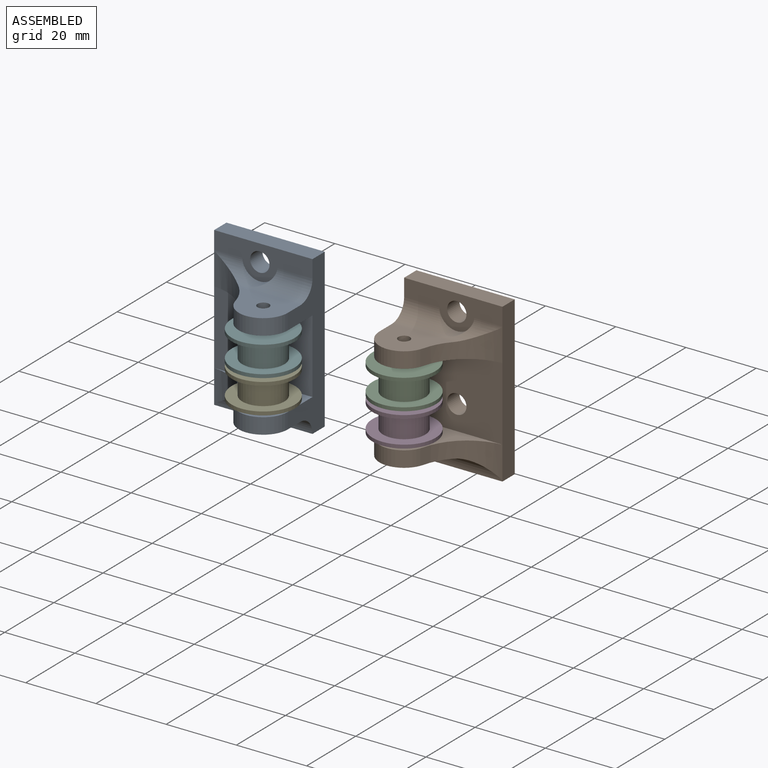
[diagram: assembled view]
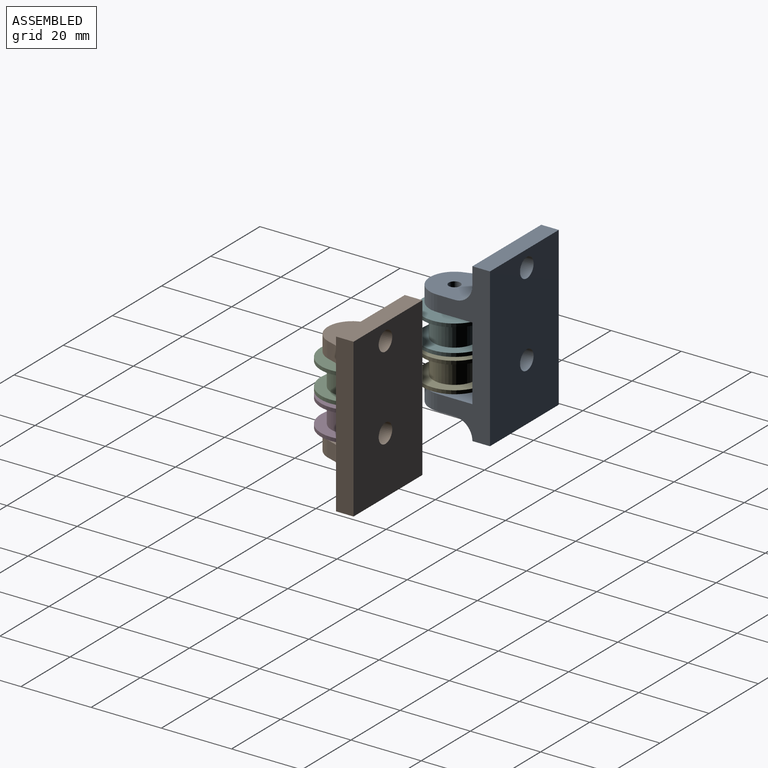
[diagram: assembled view, second angle]
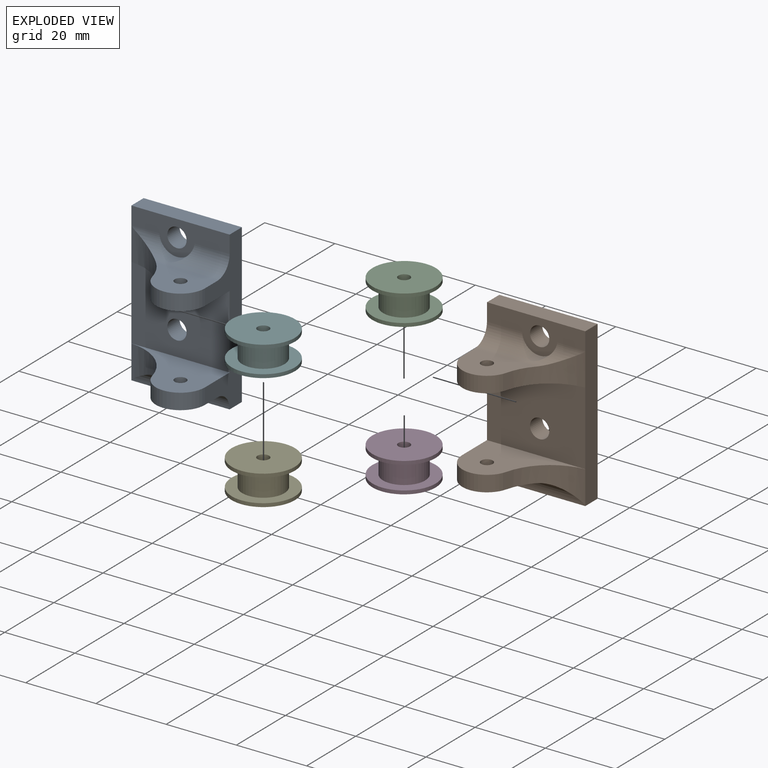
[diagram: exploded view]
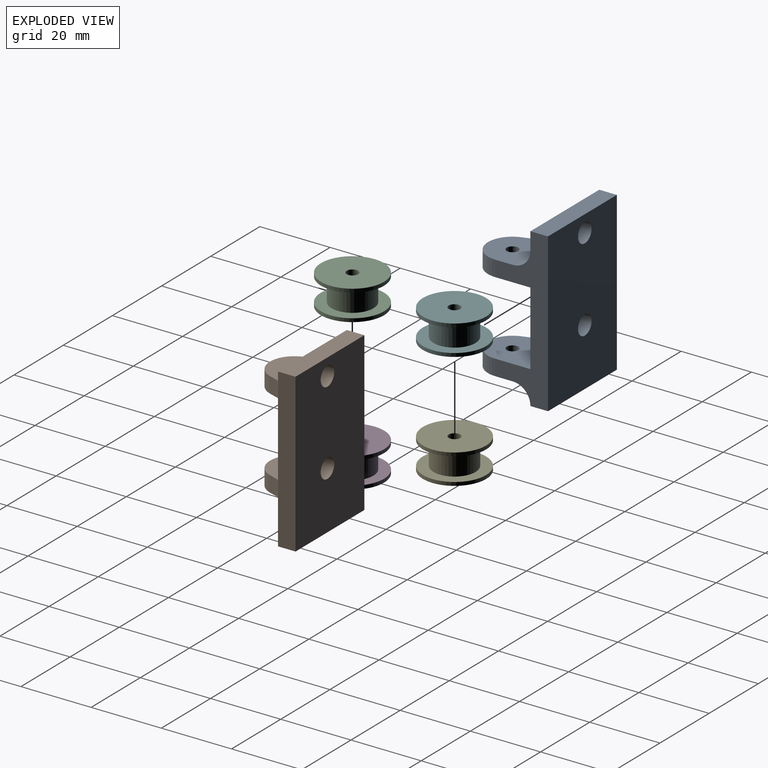
[diagram: exploded view, second angle]
ASSEMBLY  parts=6 mates=8
PART A: 22 faces, bbox 28x22x45 mm
  f0: plane 45x28mm, normal (0,1,0), area 1212.5mm2, adj f1,f7,f8,f18,f19,f21
  f1: plane 45x5mm, normal (-1,0,0), area 225mm2, adj f0,f3,f6,f8,f16,f17,f21
  f2: cylinder r=5mm len=28mm, axis (-1,0,0), area 132.9mm2, adj f3,f7,f10,f17,f20
  f3: plane 28x9.75mm, normal (0,-1,0), area 153mm2, adj f1,f2,f7,f8,f18,f20
  f4: cylinder r=7mm len=13.78mm, axis (0,0,1), area 91mm2, adj f7,f11,f12,f16
  f5: cylinder r=7mm len=13.78mm, axis (0,0,1), area 91mm2, adj f7,f9,f10,f17
  f6: plane 28x21mm, normal (0,-1,0), area 564.2mm2, adj f1,f7,f9,f11,f19
  f7: plane 45x15mm, normal (1,0,0), area 325.7mm2, adj f0,f2,f3,f4,f5,f6,f8,f9
  f8: plane 28x5mm, normal (0,0,1), area 140mm2, adj f0,f1,f3,f7
  f9: plane 28x17mm, normal (0,0,-1), area 251.9mm2, adj f5,f6,f7,f14,f17
  f10: plane 17.46x12mm, normal (0,0,1), area 147mm2, adj f2,f5,f7,f14,f17
  f11: plane 28x17mm, normal (0,0,1), area 251.9mm2, adj f4,f6,f7,f13,f16
  f12: plane 17.46x12mm, normal (0,0,-1), area 147mm2, adj f4,f7,f13,f15,f16
  f13: cylinder r=1.65mm len=4.5mm, axis (0,0,1), area 46.7mm2, adj f11,f12
  f14: cylinder r=1.65mm len=4.5mm, axis (0,0,1), area 46.7mm2, adj f9,f10
  f15: cylinder r=5mm len=28mm, axis (1,0,0), area 176.9mm2, adj f7,f12,f16,f21
  f16: cylinder r=15.69mm len=14.22mm, axis (0,0,1), area 109.4mm2, adj f1,f4,f11,f12,f15
  f17: cylinder r=15.69mm len=14.22mm, axis (0,0,-1), area 109.4mm2, adj f1,f2,f5,f9,f10
  f18: cylinder r=2.75mm len=5.5mm, axis (0,-1,0), area 86.4mm2, adj f0,f3
  f19: cylinder r=2.75mm len=5.5mm, axis (0,-1,0), area 86.4mm2, adj f0,f6
  f20: cylinder r=5mm len=9.99mm, axis (0,1,0), area 22.8mm2, adj f2,f3
  f21: plane 28x5mm, normal (0,0,-1), area 140mm2, adj f0,f1,f7,f15
PART B: 22 faces, bbox 28x22x45 mm
  f0: plane 45x28mm, normal (0,1,0), area 1212.5mm2, adj f1,f7,f8,f18,f19,f21
  f1: plane 45x5mm, normal (1,0,0), area 225mm2, adj f0,f3,f6,f8,f16,f17,f21
  f2: cylinder r=5mm len=28mm, axis (1,0,0), area 132.9mm2, adj f3,f7,f10,f17,f20
  f3: plane 28x9.75mm, normal (0,-1,0), area 153mm2, adj f1,f2,f7,f8,f18,f20
  f4: cylinder r=7mm len=13.78mm, axis (0,0,1), area 91mm2, adj f7,f11,f12,f16
  f5: cylinder r=7mm len=13.78mm, axis (0,0,1), area 91mm2, adj f7,f9,f10,f17
  f6: plane 28x21mm, normal (0,-1,0), area 564.2mm2, adj f1,f7,f9,f11,f19
  f7: plane 45x15mm, normal (-1,0,0), area 325.7mm2, adj f0,f2,f3,f4,f5,f6,f8,f9
  f8: plane 28x5mm, normal (0,0,1), area 140mm2, adj f0,f1,f3,f7
  f9: plane 28x17mm, normal (0,0,-1), area 251.9mm2, adj f5,f6,f7,f14,f17
  f10: plane 17.46x12mm, normal (0,0,1), area 147mm2, adj f2,f5,f7,f14,f17
  f11: plane 28x17mm, normal (0,0,1), area 251.9mm2, adj f4,f6,f7,f13,f16
  f12: plane 17.46x12mm, normal (0,0,-1), area 147mm2, adj f4,f7,f13,f15,f16
  f13: cylinder r=1.65mm len=4.5mm, axis (0,0,1), area 46.7mm2, adj f11,f12
  f14: cylinder r=1.65mm len=4.5mm, axis (0,0,1), area 46.7mm2, adj f9,f10
  f15: cylinder r=5mm len=28mm, axis (-1,0,0), area 176.9mm2, adj f7,f12,f16,f21
  f16: cylinder r=15.69mm len=14.22mm, axis (0,0,1), area 109.4mm2, adj f1,f4,f11,f12,f15
  f17: cylinder r=15.69mm len=14.22mm, axis (0,0,-1), area 109.4mm2, adj f1,f2,f5,f9,f10
  f18: cylinder r=2.75mm len=5.5mm, axis (0,-1,0), area 86.4mm2, adj f0,f3
  f19: cylinder r=2.75mm len=5.5mm, axis (0,-1,0), area 86.4mm2, adj f0,f6
  f20: cylinder r=5mm len=9.99mm, axis (0,1,0), area 22.8mm2, adj f2,f3
  f21: plane 28x5mm, normal (0,0,-1), area 140mm2, adj f0,f1,f7,f15
PART C: 8 faces, bbox 18x8.6x18 mm
  f0: plane 18x18mm, normal (0,-1,0), area 245.9mm2, adj f1,f7
  f1: cylinder r=9mm len=18mm, axis (0,1,0), area 56.5mm2, adj f0,f2
  f2: plane 18x18mm, normal (0,1,0), area 141.4mm2, adj f1,f3
  f3: cylinder r=6mm len=12mm, axis (0,1,0), area 248.8mm2, adj f2,f4
  f4: plane 18x18mm, normal (0,-1,0), area 141.4mm2, adj f3,f5
  f5: cylinder r=9mm len=18mm, axis (0,1,0), area 56.5mm2, adj f4,f6
  f6: plane 18x18mm, normal (0,1,0), area 245.9mm2, adj f5,f7
  f7: cylinder r=1.65mm len=8.6mm, axis (0,-1,0), area 89.2mm2, adj f0,f6
PART D: same geometry as C
PART E: same geometry as C
PART F: same geometry as C
PLACE A t=(-6.54,11,-29.64)mm
PLACE B t=(3.82,10.35,-27.06)mm
PLACE C rot(axis=(1,0,0),90deg) t=(27.02,-4.65,-1.56)mm
PLACE D rot(axis=(-1,0,0),90deg) t=(27.02,-4.65,-2.56)mm
PLACE E rot(axis=(-1,0,0),90deg) t=(-13.54,-4,-5.14)mm
PLACE F rot(axis=(1,0,0),90deg) t=(-13.54,-4,-4.14)mm
MATE parallel C.f7 <-> D.f7  axis (0,0,-1) through (27.02,-4.65,-1.56)mm
MATE parallel E.f7 <-> F.f7  axis (0,0,1) through (-13.54,-4,-5.14)mm
MATE slider A.f4 <-> E.f1  axis (0,0,1) through (-13.54,-4,-15.14)mm
MATE slider F.f1 <-> A.f4  axis (0,0,-1) through (-13.54,-4,-4.14)mm
MATE parallel A.f9 <-> F.f7  axis (0,0,-1) through (-15.34,-0.91,5.86)mm
MATE parallel C.f7 <-> B.f9  axis (0,0,1) through (27.02,-4.65,7.04)mm
MATE slider C.f1 <-> B.f4  axis (0,0,-1) through (27.02,-4.65,-1.56)mm
MATE slider D.f1 <-> B.f4  axis (0,0,1) through (27.02,-4.65,-2.56)mm
